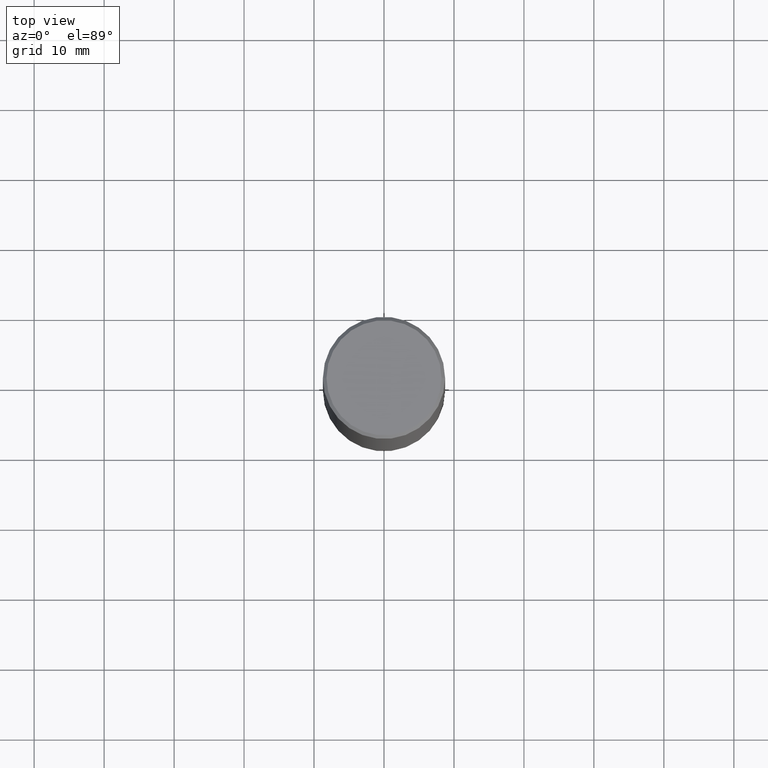
[diagram: clean part render]
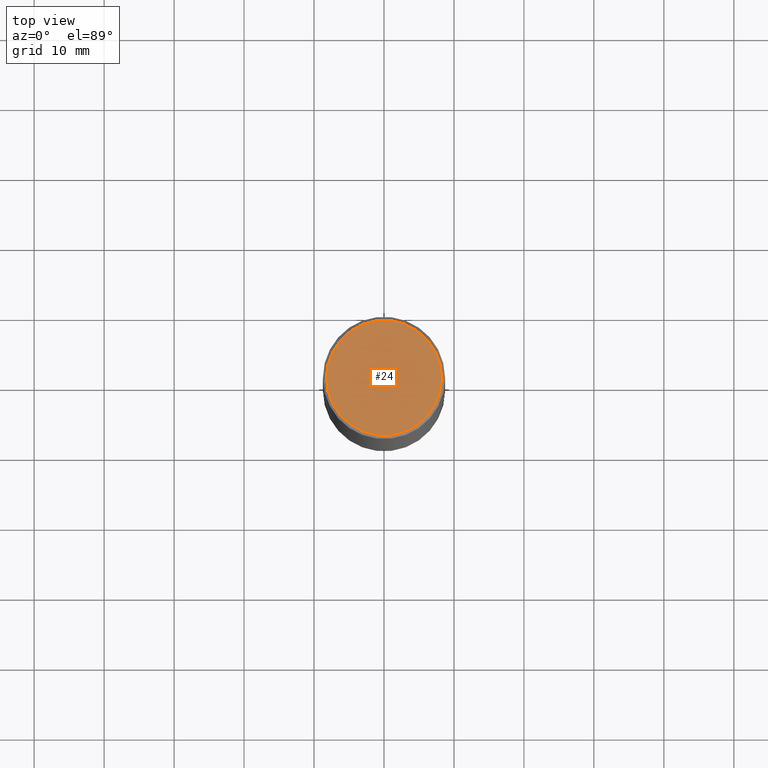
[diagram: same view with one face highlighted and labeled with its STEP entity id]
A machine part, top view. The second image highlights one B-rep face of the part: STEP entity #24.
In plain terms, the highlighted planar face has unit normal (0, -0, -1).
Its self-contained STEP definition (entity closure, byte-faithful):
#16 = DIRECTION ( 'NONE',  ( 1.000000000000000000, -6.982962677686265133E-15, 4.876157412475882773E-29 ) ) ;
#19 = AXIS2_PLACEMENT_3D ( 'NONE', #47, #165, #190 ) ;
#24 = ADVANCED_FACE ( 'NONE', ( #222 ), #264, .F. ) ;
#42 = VERTEX_POINT ( 'NONE', #43 ) ;
#43 = CARTESIAN_POINT ( 'NONE',  ( 0.3237499999999995937, -2.324606020144677531E-15, 4.268512490116445031E-18 ) ) ;
#47 = CARTESIAN_POINT ( 'NONE',  ( 2.260734166900925613E-15, 0.3237499999999995937, -1.128232827205416735E-15 ) ) ;
#50 = EDGE_CURVE ( 'NONE', #280, #42, #167, .T. ) ;
#53 = CARTESIAN_POINT ( 'NONE',  ( -1.043851414335219820E-46, 1.490343170380447200E-32, 4.268512490100411279E-18 ) ) ;
#58 = CARTESIAN_POINT ( 'NONE',  ( -0.3237499999999995937, 2.295648980289356868E-15, 4.268512490084478446E-18 ) ) ;
#110 = DIRECTION ( 'NONE',  ( -2.445468806185136597E-29, 3.491481338843145583E-15, 1.000000000000000000 ) ) ;
#133 = ORIENTED_EDGE ( 'NONE', *, *, #244, .T. ) ;
#164 = ORIENTED_EDGE ( 'NONE', *, *, #50, .T. ) ;
#165 = DIRECTION ( 'NONE',  ( 2.438088387897960049E-29, -3.491481338843145188E-15, -1.000000000000000000 ) ) ;
#167 = CIRCLE ( 'NONE', #364, 0.3237499999999995937 ) ;
#190 = DIRECTION ( 'NONE',  ( -1.000000000000000000, 6.982962677686265922E-15, -4.876176775795935793E-29 ) ) ;
#222 = FACE_OUTER_BOUND ( 'NONE', #260, .T. ) ;
#244 = EDGE_CURVE ( 'NONE', #42, #280, #346, .T. ) ;
#253 = AXIS2_PLACEMENT_3D ( 'NONE', #53, #110, #331 ) ;
#257 = CARTESIAN_POINT ( 'NONE',  ( -1.043851414335219820E-46, 1.490343170380447200E-32, 4.268512490100411279E-18 ) ) ;
#260 = EDGE_LOOP ( 'NONE', ( #164, #133 ) ) ;
#264 = PLANE ( 'NONE',  #19 ) ;
#280 = VERTEX_POINT ( 'NONE', #58 ) ;
#291 = DIRECTION ( 'NONE',  ( -2.445468806185136597E-29, 3.491481338843145583E-15, 1.000000000000000000 ) ) ;
#331 = DIRECTION ( 'NONE',  ( 1.000000000000000000, -6.982962677686265133E-15, 4.876157412475882773E-29 ) ) ;
#346 = CIRCLE ( 'NONE', #253, 0.3237499999999995937 ) ;
#364 = AXIS2_PLACEMENT_3D ( 'NONE', #257, #291, #16 ) ;